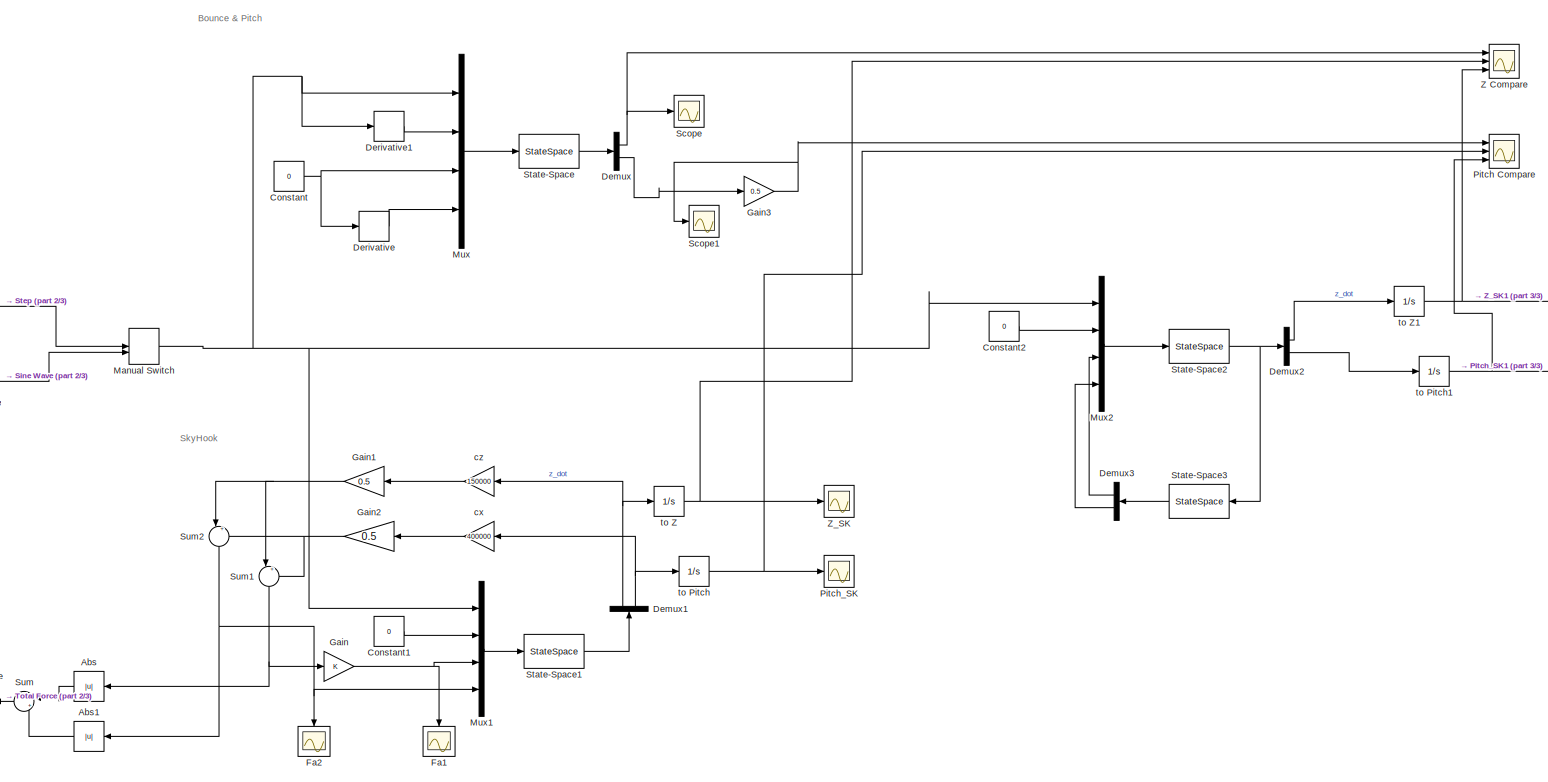
[diagram: root canvas - part 1/3, most of the canvas]
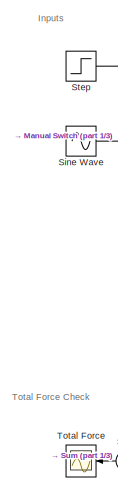
[diagram: root canvas - part 2/3, middle left region]
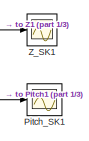
[diagram: root canvas - part 3/3, middle right region]
MODEL slx_fe84bf0889d2
KIND model
CONFIG AbsTol = auto
CONFIG EnableMultiTasking = off
CONFIG FixedStep = auto
CONFIG MaxStep = auto
CONFIG MinStep = auto
CONFIG RelTol = 1e-5
CONFIG SampleTimeConstraint = Unconstrained
CONFIG Solver = VariableStepAuto
CONFIG SolverName = VariableStepAuto
CONFIG StartTime = 0.0
CONFIG StopTime = 10.0
BLOCK [Abs] Abs
  SaturateOnIntegerOverflow = off
BLOCK [Abs] Abs1
  SaturateOnIntegerOverflow = off
BLOCK [Constant] Constant
  Value = 0
BLOCK [Constant] Constant1
  Value = 0
BLOCK [Constant] Constant2
  Value = 0
BLOCK [Demux] Demux
  DisplayOption = bar
  Outputs = 2
  Ports = [1, 2]
BLOCK [Demux] Demux1
  DisplayOption = bar
  Outputs = 2
  Ports = [1, 2]
BLOCK [Demux] Demux2
  DisplayOption = bar
  Outputs = 2
  Ports = [1, 2]
BLOCK [Demux] Demux3
  DisplayOption = bar
  Outputs = 2
  Ports = [1, 2]
BLOCK [Derivative] Derivative
BLOCK [Derivative] Derivative1
BLOCK [Scope] Fa1
  NumInputPorts = 1
  Ports = [1]
  ScopeSpecificationString = Simulink.scopes.TimeScopeBlockCfg('CurrentConfiguration', extmgr.ConfigurationSet(extmgr.Configuration('Core','General UI',true),extmgr.Configuration('Core','Source UI',true),extmgr.Configuration('Sources','WiredSimulink',true,'DataLoggingVariableName','ScopeData5'),extmgr.Configuration('Visuals','Time Domain',true,'SerializedDisplays',{struct('MinYLimReal','-2346.49576','MaxYLimReal','6149.35896'...<+1413ch>
BLOCK [Scope] Fa2
  NumInputPorts = 1
  Ports = [1]
  ScopeSpecificationString = Simulink.scopes.TimeScopeBlockCfg('CurrentConfiguration', extmgr.ConfigurationSet(extmgr.Configuration('Core','General UI',true),extmgr.Configuration('Core','Source UI',true),extmgr.Configuration('Sources','WiredSimulink',true,'DataLoggingVariableName','ScopeData6'),extmgr.Configuration('Visuals','Time Domain',true,'SerializedDisplays',{struct('MinYLimReal','-1143.23242','MaxYLimReal','4230.55062'...<+1385ch>
BLOCK [Gain] Gain
  OutDataTypeStr = Inherit: Inherit via internal rule
  ParamDataTypeStr = Inherit: Inherit via internal rule
  SaturateOnIntegerOverflow = off
BLOCK [Gain] Gain1
  Gain = 0.5
  OutDataTypeStr = Inherit: Inherit via internal rule
  ParamDataTypeStr = Inherit: Inherit via internal rule
  SaturateOnIntegerOverflow = off
BLOCK [Gain] Gain2
  Gain = 0.5
  OutDataTypeStr = Inherit: Inherit via internal rule
  ParamDataTypeStr = Inherit: Inherit via internal rule
  SaturateOnIntegerOverflow = off
BLOCK [Gain] Gain3
  Gain = 0.5
  OutDataTypeStr = Inherit: Inherit via internal rule
  ParamDataTypeStr = Inherit: Inherit via internal rule
  SaturateOnIntegerOverflow = off
BLOCK [ManualSwitch] Manual Switch
BLOCK [Mux] Mux
  DisplayOption = bar
  Ports = [4, 1]
BLOCK [Mux] Mux1
  DisplayOption = bar
  Ports = [4, 1]
BLOCK [Mux] Mux2
  DisplayOption = bar
  Ports = [4, 1]
BLOCK [Scope] Pitch Compare
  NumInputPorts = 3
  Ports = [3]
  ScopeSpecificationString = Simulink.scopes.TimeScopeBlockCfg('CurrentConfiguration', extmgr.ConfigurationSet(extmgr.Configuration('Core','General UI',true,'FigureColor',[1 1 1]),extmgr.Configuration('Core','Source UI',true),extmgr.Configuration('Sources','WiredSimulink',true,'DataLoggingVariableName','ScopeData7'),extmgr.Configuration('Visuals','Time Domain',true,'SerializedDisplays',{struct('MinYLimReal','-0.00467','MaxYLi...<+1786ch>
BLOCK [Scope] Pitch_SK
  NumInputPorts = 1
  Ports = [1]
  ScopeSpecificationString = Simulink.scopes.TimeScopeBlockCfg('CurrentConfiguration', extmgr.ConfigurationSet(extmgr.Configuration('Core','General UI',true),extmgr.Configuration('Core','Source UI',true),extmgr.Configuration('Sources','WiredSimulink',true,'DataLoggingVariableName','ScopeData3'),extmgr.Configuration('Visuals','Time Domain',true,'SerializedDisplays',{struct('MinYLimReal','-0.00419','MaxYLimReal','0.00047','YLab...<+1396ch>
BLOCK [Scope] Pitch_SK1
  NumInputPorts = 1
  Ports = [1]
  ScopeSpecificationString = Simulink.scopes.TimeScopeBlockCfg('CurrentConfiguration', extmgr.ConfigurationSet(extmgr.Configuration('Core','General UI',true),extmgr.Configuration('Core','Source UI',true),extmgr.Configuration('Sources','WiredSimulink',true,'DataLoggingVariableName','ScopeData1'),extmgr.Configuration('Visuals','Time Domain',true,'SerializedDisplays',{struct('MinYLimReal','-0.00555','MaxYLimReal','0.00062','YLab...<+1368ch>
BLOCK [Scope] Scope
  NumInputPorts = 1
  Ports = [1]
  ScopeSpecificationString = Simulink.scopes.TimeScopeBlockCfg('CurrentConfiguration', extmgr.ConfigurationSet(extmgr.Configuration('Core','General UI',true,'FigureColor',[1 1 1]),extmgr.Configuration('Core','Source UI',true),extmgr.Configuration('Sources','WiredSimulink',true),extmgr.Configuration('Visuals','Time Domain',true,'SerializedDisplays',{struct('MinYLimReal','-0.00272','MaxYLimReal','0.02447','YLabelReal','','MinYL...<+1479ch>
BLOCK [Scope] Scope1
  NumInputPorts = 1
  Ports = [1]
  ScopeSpecificationString = Simulink.scopes.TimeScopeBlockCfg('CurrentConfiguration', extmgr.ConfigurationSet(extmgr.Configuration('Core','General UI',true,'FigureColor',[1 1 1]),extmgr.Configuration('Core','Source UI',true),extmgr.Configuration('Sources','WiredSimulink',true,'DataLoggingVariableName','ScopeData1'),extmgr.Configuration('Visuals','Time Domain',true,'SerializedDisplays',{struct('MinYLimReal','-0.00467','MaxYLi...<+1518ch>
BLOCK [Sin] Sine Wave
  Amplitude = 0.01
  Frequency = 6.28
  Ports = [0, 1]
  SampleTime = 0
BLOCK [StateSpace] State-Space
  A = [0 1 0 0 ; (k1 + k2)*(-1/m) (c1 + c2)*(-1/m) ((1-Lambda)*k2 -Lambda*k1)*(-L/m) ((1-Lambda)*c2 - Lambda*c1)*(-L/m); 0 0 0 1; ((1-Lambda)*k2 - Lambda*k1)*(-L/j) ((1-Lambda)*c2 - Lambda*c1)*(-L/j) (Lambda*Lambda*k1 + (1- Lambda)*(1-Lambda)*k2)*(-(L*L)/j) (Lambda*Lambda*c1 + (1- Lambda)*(1-Lambda)*c2)*(-(L*L)/j )] ;
  B = [  0 0 0 0; k1/m c1/m k2/m c2/m ;      0 0 0 0; \n     (-k1*Lambda*L)/j (-c1*Lambda*L)/j (k2*(1-Lambda)*L)/j (c2*(1-Lambda)*L)/j;\n\n] ;
  C = [1 0 0 0; 0 0 1 0;]
  D = [0 0 0 0;0 0 0 0]
  Ports = [1, 1]
  X0 = 0
BLOCK [StateSpace] State-Space1
  A = [0 1 0 0\n ;  -2*k/m 0 0 0\n ;   0 0 0 1\n ;   0 0 -2*k*L^2/j 0];
  B = [0 0 0 0\n  ;  k/m k/m -1/m -1/m\n ;   0 0 0 0\n   ; -L*k/j L*k/j L/j -L/j];
  C = [0 1 0 0\n    0 0 0 1];
  D = [ 0 0 0 0 ; 0 0 0 0;];
  Ports = [1, 1]
  X0 = 0
BLOCK [StateSpace] State-Space2
  A = [0 1 0 0\n ;  -2*k/m 0 0 0\n ;   0 0 0 1\n ;   0 0 -2*k*L^2/j 0];
  B = [0 0 0 0\n  ;  k/m k/m -1/m -1/m\n ;   0 0 0 0\n   ; -L*k/j L*k/j L/j -L/j];
  C = [0 1 0 0\n    0 0 0 1];
  D = [ 0 0 0 0 ; 0 0 0 0;];
  Ports = [1, 1]
  X0 = 0
BLOCK [StateSpace] State-Space3
  A = K.A
  B = K.B
  C = K.C
  D = K.D
  Ports = [1, 1]
  X0 = 0
BLOCK [Step] Step
  After = 0.03
  SampleTime = 0
BLOCK [Sum] Sum
  IconShape = round
  InputSameDT = off
  Inputs = |++
  OutDataTypeStr = Inherit: Inherit via internal rule
  Ports = [2, 1]
  SaturateOnIntegerOverflow = off
BLOCK [Sum] Sum1
  IconShape = round
  InputSameDT = off
  Inputs = |+-
  OutDataTypeStr = Inherit: Inherit via internal rule
  Ports = [2, 1]
  SaturateOnIntegerOverflow = off
BLOCK [Sum] Sum2
  IconShape = round
  InputSameDT = off
  Inputs = |++
  OutDataTypeStr = Inherit: Inherit via internal rule
  Ports = [2, 1]
  SaturateOnIntegerOverflow = off
BLOCK [Scope] Total Force
  NumInputPorts = 1
  Ports = [1]
  ScopeSpecificationString = Simulink.scopes.TimeScopeBlockCfg('CurrentConfiguration', extmgr.ConfigurationSet(extmgr.Configuration('Core','General UI',true,'FigureColor',[1 1 1]),extmgr.Configuration('Core','Source UI',true),extmgr.Configuration('Sources','WiredSimulink',true,'DataLoggingVariableName','ScopeData4'),extmgr.Configuration('Visuals','Time Domain',true,'SerializedDisplays',{struct('MinYLimReal','-1177.39824','Max...<+1536ch>
BLOCK [Scope] Z Compare
  NumInputPorts = 3
  Ports = [3]
  ScopeSpecificationString = Simulink.scopes.TimeScopeBlockCfg('CurrentConfiguration', extmgr.ConfigurationSet(extmgr.Configuration('Core','General UI',true,'FigureColor',[1 1 1]),extmgr.Configuration('Core','Source UI',true),extmgr.Configuration('Sources','WiredSimulink',true,'DataLoggingVariableName','ScopeData8'),extmgr.Configuration('Visuals','Time Domain',true,'SerializedDisplays',{struct('MinYLimReal','-0.00272','MaxYLi...<+1783ch>
BLOCK [Scope] Z_SK
  NumInputPorts = 1
  Ports = [1]
  ScopeSpecificationString = Simulink.scopes.TimeScopeBlockCfg('CurrentConfiguration', extmgr.ConfigurationSet(extmgr.Configuration('Core','General UI',true),extmgr.Configuration('Core','Source UI',true),extmgr.Configuration('Sources','WiredSimulink',true,'DataLoggingVariableName','ScopeData2'),extmgr.Configuration('Visuals','Time Domain',true,'SerializedDisplays',{struct('MinYLimReal','-0.00224','MaxYLimReal','0.02017','YLab...<+1392ch>
BLOCK [Scope] Z_SK1
  NumInputPorts = 1
  Ports = [1]
  ScopeSpecificationString = Simulink.scopes.TimeScopeBlockCfg('CurrentConfiguration', extmgr.ConfigurationSet(extmgr.Configuration('Core','General UI',true),extmgr.Configuration('Core','Source UI',true),extmgr.Configuration('Sources','WiredSimulink',true,'DataLoggingVariableName','ScopeData2'),extmgr.Configuration('Visuals','Time Domain',true,'SerializedDisplays',{struct('MinYLimReal','-0.00192','MaxYLimReal','0.01727','YLab...<+1393ch>
BLOCK [Gain] cx
  Gain = 400000
  OutDataTypeStr = Inherit: Inherit via internal rule
  ParamDataTypeStr = Inherit: Inherit via internal rule
  SaturateOnIntegerOverflow = off
BLOCK [Gain] cz
  Gain = 150000
  OutDataTypeStr = Inherit: Inherit via internal rule
  ParamDataTypeStr = Inherit: Inherit via internal rule
  SaturateOnIntegerOverflow = off
BLOCK [Integrator] to Pitch
  Ports = [1, 1]
BLOCK [Integrator] to Pitch1
  Ports = [1, 1]
BLOCK [Integrator] to Z
  Ports = [1, 1]
BLOCK [Integrator] to Z1
  Ports = [1, 1]
ANNOTATION (root): Bounce & Pitch
ANNOTATION (root): Inputs
ANNOTATION (root): SkyHook
ANNOTATION (root): Total Force Check
LINE Abs1:1 -> Sum:2
LINE Abs:1 -> Sum:1
LINE Constant1:1 -> Mux1:2
LINE Constant2:1 -> Mux2:2
NET Constant:1 -> Derivative:1, Mux:3
NET Demux1:1 -> cz:1, to Z:1
NET Demux1:2 -> cx:1, to Pitch:1
LINE Demux2:1 -> to Z1:1
LINE Demux2:2 -> to Pitch1:1
LINE Demux3:1 -> Mux2:3
LINE Demux3:2 -> Mux2:4
NET Demux:1 -> Scope:1, Z Compare:1
LINE Demux:2 -> Gain3:1
LINE Derivative1:1 -> Mux:2
LINE Derivative:1 -> Mux:4
NET Gain1:1 -> Sum1:1, Sum2:1
NET Gain2:1 -> Sum1:2, Sum2:2
NET Gain3:1 -> Pitch Compare:1, Scope1:1
NET Gain:1 -> Fa1:1, Mux1:3
NET Manual Switch:1 -> Derivative1:1, Mux1:1, Mux2:1, Mux:1
LINE Mux1:1 -> State-Space1:1
LINE Mux2:1 -> State-Space2:1
LINE Mux:1 -> State-Space:1
LINE Sine Wave:1 -> Manual Switch:2
LINE State-Space1:1 -> Demux1:1
NET State-Space2:1 -> Demux2:1, State-Space3:1
LINE State-Space3:1 -> Demux3:1
LINE State-Space:1 -> Demux:1
LINE Step:1 -> Manual Switch:1
NET Sum1:1 -> Abs:1, Gain:1
NET Sum2:1 -> Abs1:1, Fa2:1, Mux1:4
LINE Sum:1 -> Total Force:1
LINE cx:1 -> Gain2:1
LINE cz:1 -> Gain1:1
NET to Pitch1:1 -> Pitch Compare:3, Pitch_SK1:1
NET to Pitch:1 -> Pitch Compare:2, Pitch_SK:1
NET to Z1:1 -> Z Compare:3, Z_SK1:1
NET to Z:1 -> Z Compare:2, Z_SK:1
note: NET lines group one-source signal fan-out (src -> all destinations, sorted); 1:1 wires keep LINE
